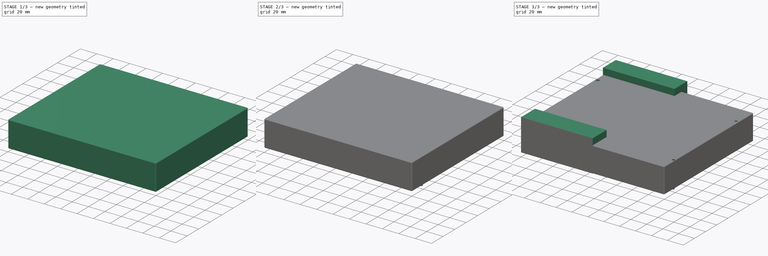
[diagram: build sequence overview — one tinted view per stage of 3, left to right]
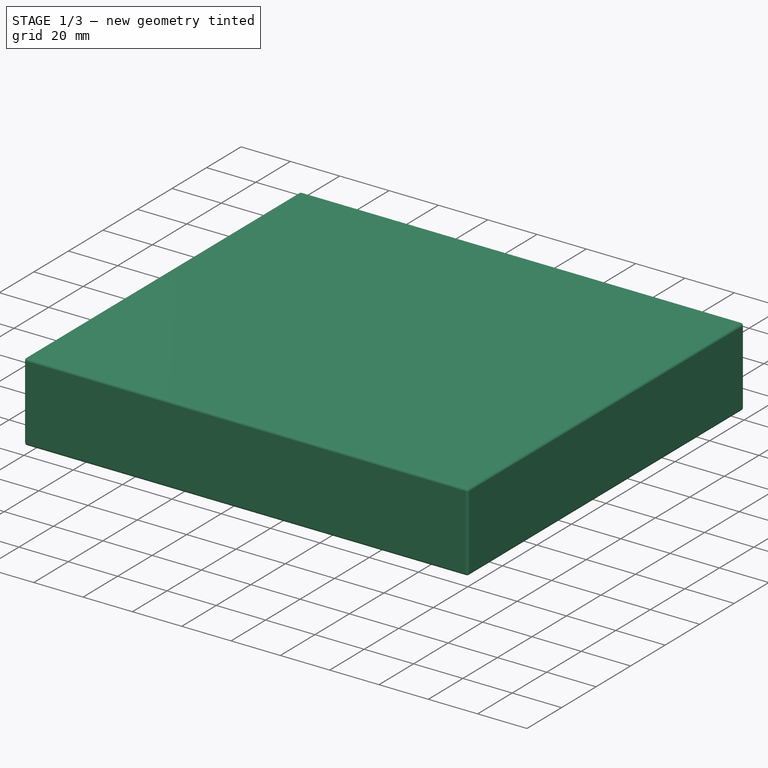
[diagram: stage 1 of 3 — iso view after this stage's code; geometry added in this stage tinted green]
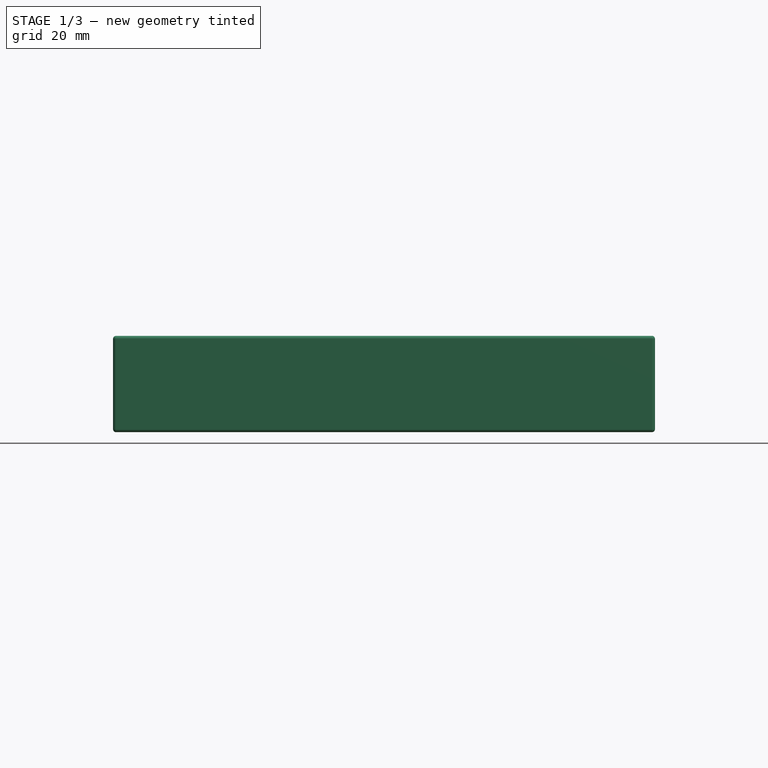
[diagram: stage 1 of 3 — front view after this stage's code; geometry added in this stage tinted green]
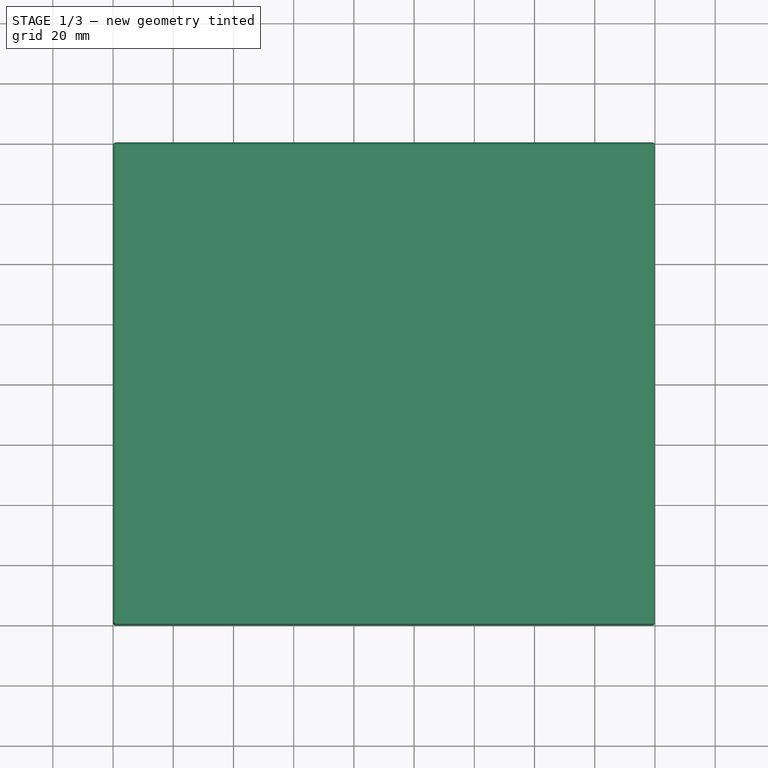
[diagram: stage 1 of 3 — top view after this stage's code; geometry added in this stage tinted green]
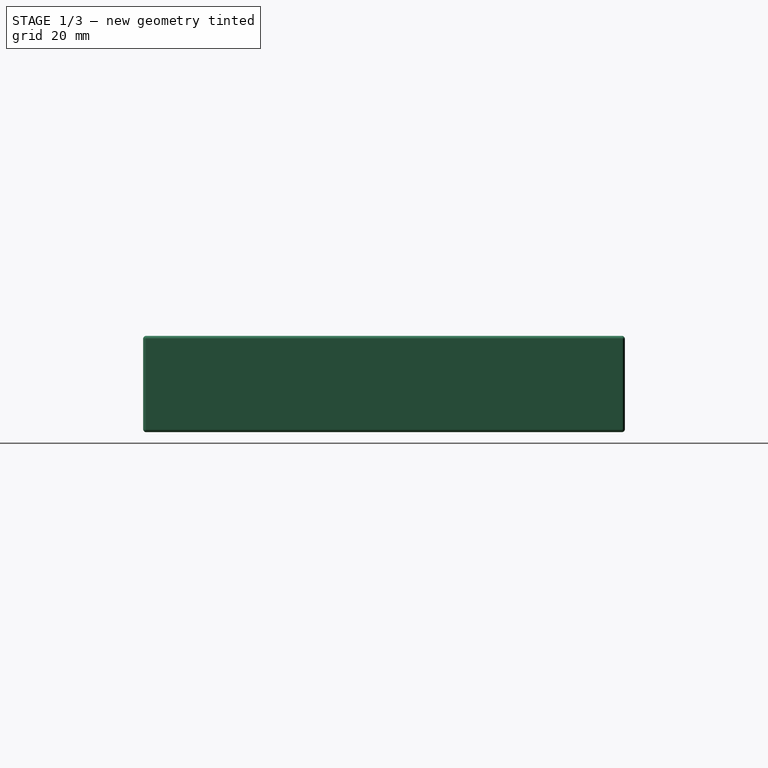
[diagram: stage 1 of 3 — right view after this stage's code; geometry added in this stage tinted green]
FCSTD DOCUMENT  (FreeCAD 1.2R20251230 (Git shallow))
Label: box_electronic_component
License: Creative Commons Attribution 4.0
LicenseURL: https://creativecommons.org/licenses/by/4.0/
objects: Sketcher::SketchObject×6, PartDesign::Pad×4, App::Point×2, PartDesign::Pocket×2, PartDesign::Body×2, PartDesign::Fillet×2
note: 38 computed .brp shape members not serialized (recipe doc carries the construction recipe); baked Part::Feature solids carry a one-line shape summary decoded from their .brp

FEATURE [PartDesign::Body] Body001  label="sign_tree"
  AllowCompound = true
  Group = -> [Sketch002,Pad,Sketch003,Pocket]
  Origin = -> Origin002
  Tip = -> Pocket
FEATURE [PartDesign::Pad] Pad001
  Direction = (0,0,1)
  Length = 30
  Length2 = 10
  Profile = -> Sketch
  ReferenceAxis = -> Sketch [N_Axis]
  Refine = true
  SideType = 0
  Suppressed = false
  Type = 0
  Type2 = 0
FEATURE [Sketcher::SketchObject] Sketch004
  ArcFitTolerance = 1e-06
  AttachmentSupport = -> [Pad001]
  ExternalTypes = [0,0]
  FullyConstrained = false
  MakeInternals = false
  MapMode = 5
  Placement = pos=(0,0,30) rot=(0,0,1;0rad)
  sketch-geometry (4):
    g0: LineSegment StartX=180 StartY=160 StartZ=0 EndX=0 EndY=160 EndZ=0
    g1: LineSegment StartX=0 StartY=160 StartZ=0 EndX=0 EndY=0 EndZ=0
    g2: LineSegment StartX=0 StartY=0 StartZ=0 EndX=180 EndY=0 EndZ=0
    g3: LineSegment StartX=180 StartY=0 StartZ=0 EndX=180 EndY=160 EndZ=0
  constraints (9):
    c: Coincident(g0,g1)
    c: Coincident(g1,g2)
    c: Coincident(g2,g3)
    c: Coincident(g3,g0)
    c: Horizontal(g0)
    c: Horizontal(g2)
    c: Vertical(g1)
    c: Vertical(g3)
    c: Coincident(g1,g-1)
FEATURE [PartDesign::Pad] Pad002
  BaseFeature = -> Pad001
  Direction = (0,0,1)
  Length = 2
  Length2 = 10
  Profile = -> Sketch004
  ReferenceAxis = -> Sketch004 [N_Axis]
  Refine = true
  SideType = 0
  Suppressed = false
  Type = 0
  Type2 = 0
FEATURE [PartDesign::Fillet] Fillet
  Base = -> Pad002 [Face74,Face72,Face76,Face75]
  BaseFeature = -> Pad002
  Radius = 1
  Refine = true
  SupportTransform = false
  Suppressed = false
  UseAllEdges = false
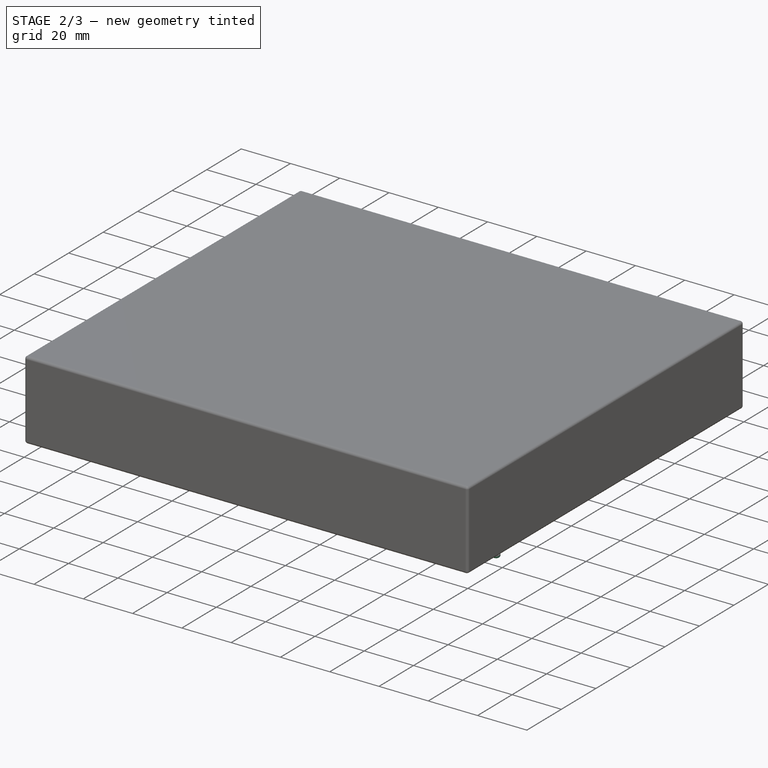
[diagram: stage 2 of 3 — iso view after this stage's code; geometry added in this stage tinted green]
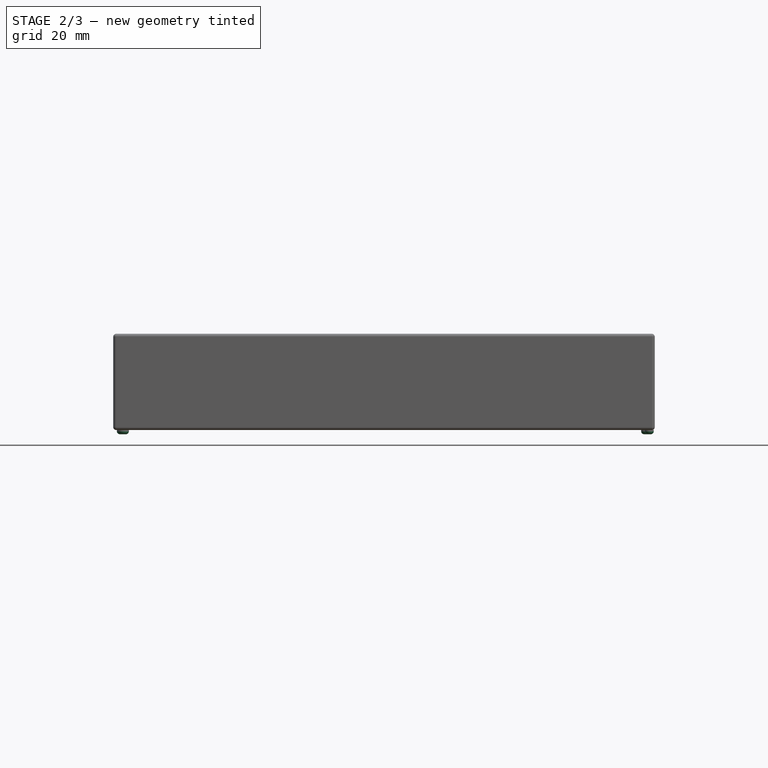
[diagram: stage 2 of 3 — front view after this stage's code; geometry added in this stage tinted green]
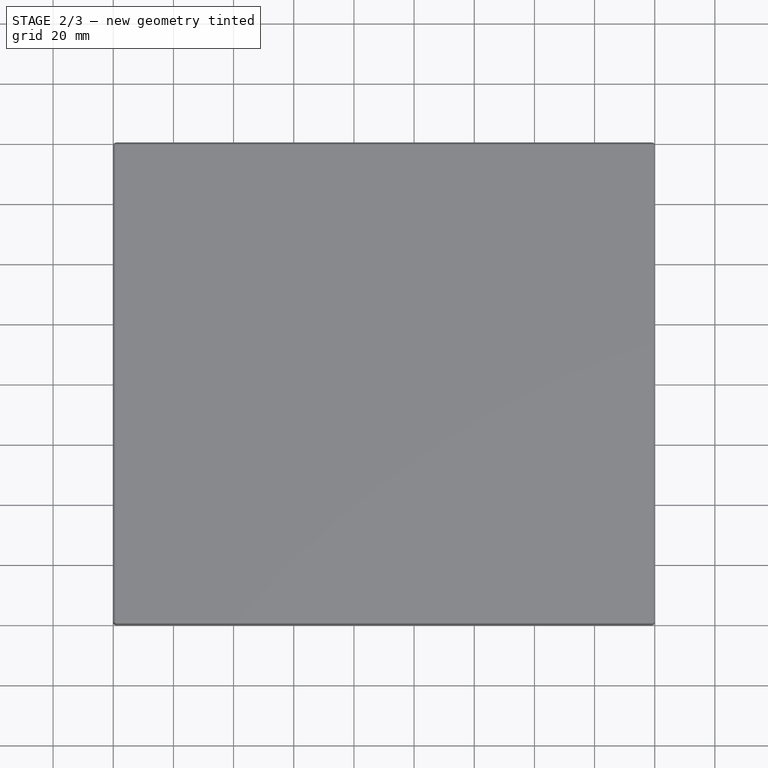
[diagram: stage 2 of 3 — top view after this stage's code; geometry added in this stage tinted green]
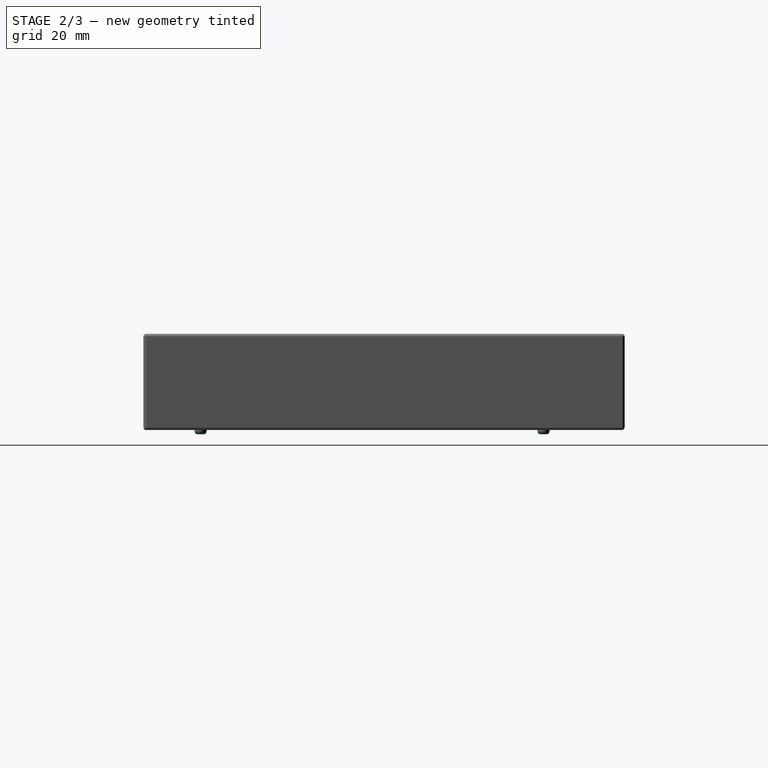
[diagram: stage 2 of 3 — right view after this stage's code; geometry added in this stage tinted green]
FEATURE [Sketcher::SketchObject] Sketch005
  ArcFitTolerance = 1e-06
  AttachmentSupport = -> [Fillet]
  ExternalTypes = [0]
  FullyConstrained = false
  MakeInternals = false
  MapMode = 5
  Placement = pos=(0,0,0) rot=(1,0,0;3.14159rad)
  sketch-geometry (4):
    g0: Circle CenterX=3.19213 CenterY=-19.0205 CenterZ=0 NormalX=0 NormalY=0 NormalZ=1 AngleXU=0 Radius=2
    g1: Circle CenterX=178.165 CenterY=-19.0204 CenterZ=0 NormalX=0 NormalY=0 NormalZ=1 AngleXU=0 Radius=1.5
    g2: Circle CenterX=3.19217 CenterY=-133.021 CenterZ=0 NormalX=0 NormalY=0 NormalZ=1 AngleXU=0 Radius=2
    g3: Circle CenterX=176.965 CenterY=-133.078 CenterZ=0 NormalX=0 NormalY=0 NormalZ=1 AngleXU=0 Radius=1.5
FEATURE [PartDesign::Pad] Pad003
  BaseFeature = -> Fillet
  Direction = (0,0,-1)
  Length = 1.4
  Length2 = 10
  Profile = -> Sketch005
  ReferenceAxis = -> Sketch005 [N_Axis]
  Refine = true
  SideType = 0
  Suppressed = false
  Type = 0
  Type2 = 0
FEATURE [PartDesign::Fillet] Fillet001
  Base = -> Pad003 [Face76,Face72,Edge194,Face84,Face92]
  BaseFeature = -> Pad003
  Radius = 1
  Refine = true
  SupportTransform = false
  Suppressed = false
  UseAllEdges = false
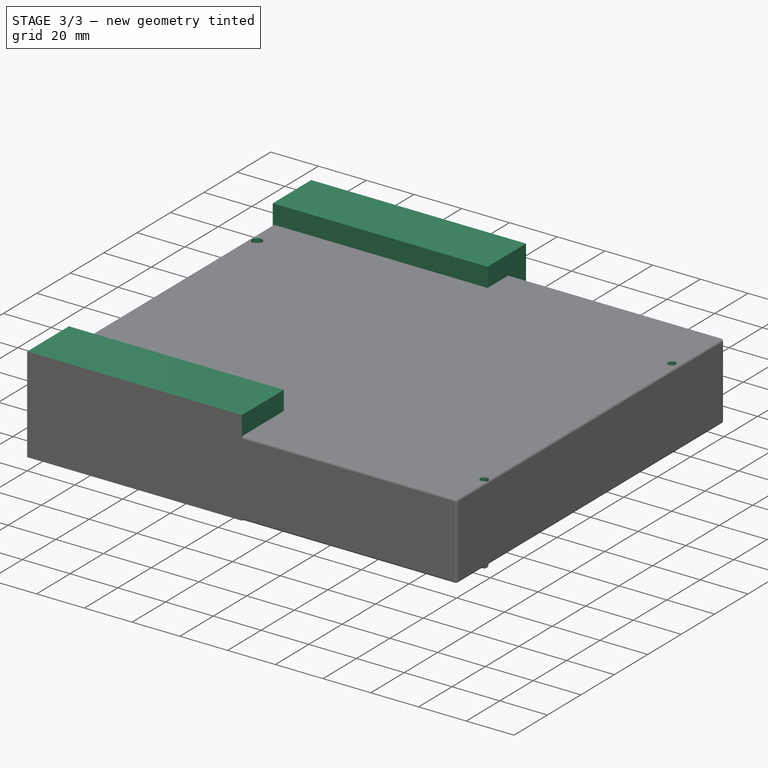
[diagram: stage 3 of 3 — iso view after this stage's code; geometry added in this stage tinted green]
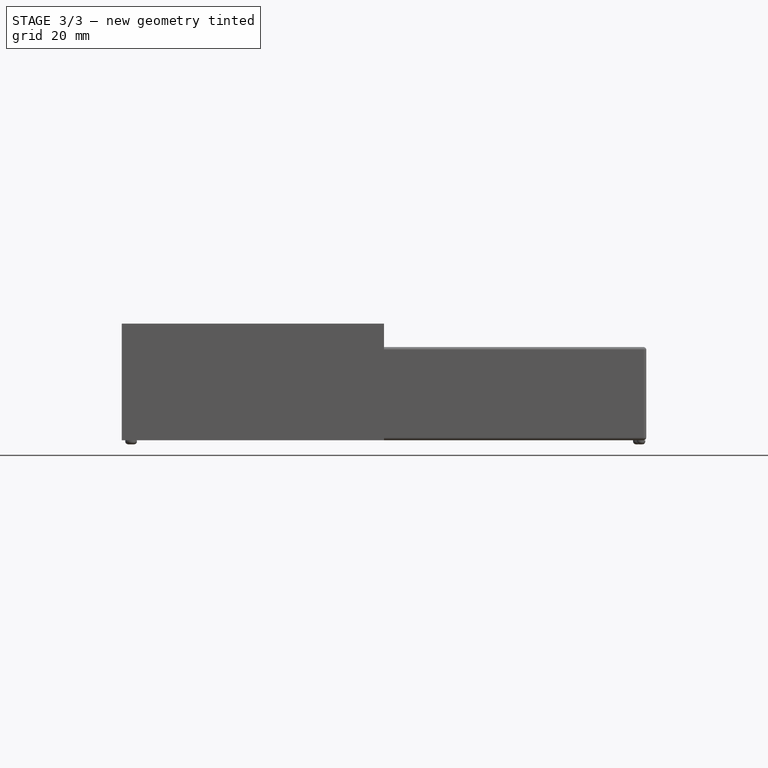
[diagram: stage 3 of 3 — front view after this stage's code; geometry added in this stage tinted green]
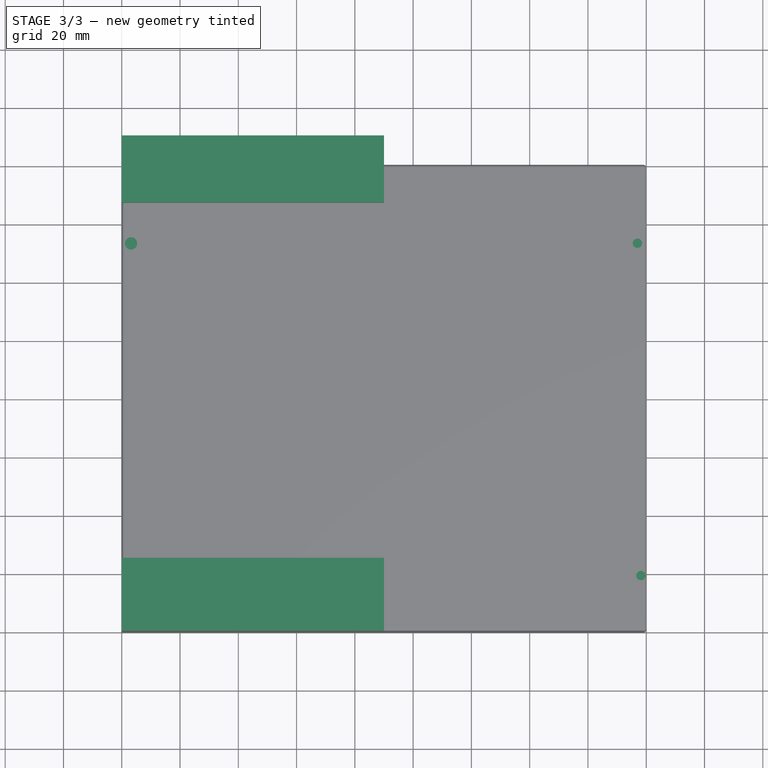
[diagram: stage 3 of 3 — top view after this stage's code; geometry added in this stage tinted green]
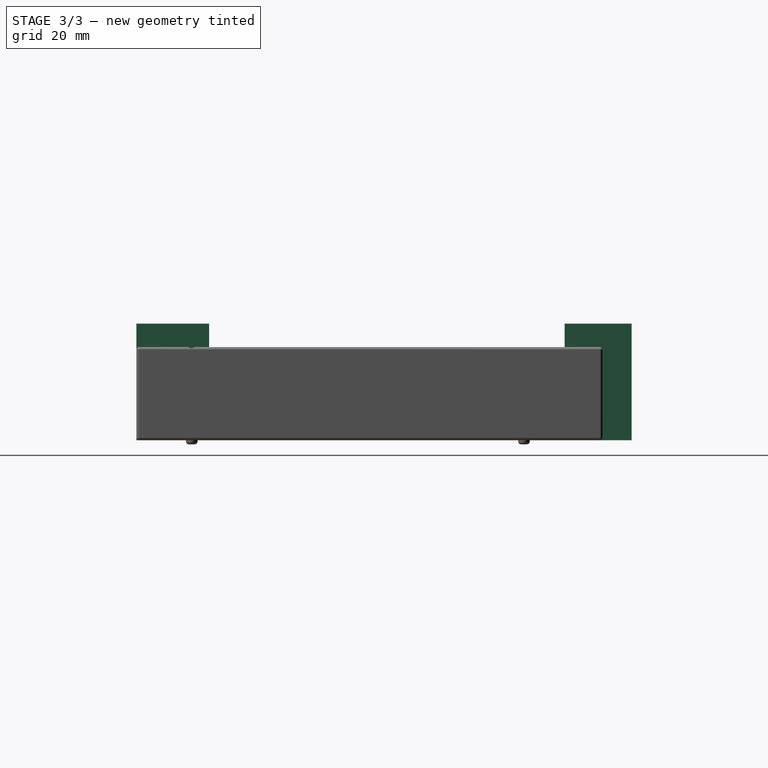
[diagram: stage 3 of 3 — right view after this stage's code; geometry added in this stage tinted green]
FEATURE [App::Point] Origin001  label="原点"
  Role = Origin
FEATURE [Sketcher::SketchObject] Sketch
  ArcFitTolerance = 1e-06
  AttachmentSupport = -> [Origin]
  ExternalTypes = [0]
  FullyConstrained = false
  MakeInternals = false
  MapMode = 5
  sketch-geometry (60):
    g0: LineSegment StartX=0 StartY=0 StartZ=0 EndX=180 EndY=0 EndZ=0
    g1: LineSegment StartX=180 StartY=0 StartZ=0 EndX=180 EndY=160 EndZ=0
    g2: LineSegment StartX=180 StartY=160 StartZ=0 EndX=0 EndY=160 EndZ=0
    g3: LineSegment StartX=0 StartY=160 StartZ=0 EndX=0 EndY=0 EndZ=0
    g4: LineSegment StartX=5.55573 StartY=3.32431 StartZ=0 EndX=89.2393 EndY=3.32431 EndZ=0
    g5: LineSegment StartX=176 StartY=3.28844 StartZ=0 EndX=176 EndY=52.952 EndZ=0
    g6: LineSegment StartX=176 StartY=52.952 StartZ=0 EndX=92.4115 EndY=52.952 EndZ=0
    g7: LineSegment StartX=5.55573 StartY=52.9879 StartZ=0 EndX=5.55573 EndY=3.32431 EndZ=0
    g8: LineSegment StartX=89.2393 StartY=52.9879 StartZ=0 EndX=5.55573 EndY=52.9879 EndZ=0
    g9: LineSegment StartX=89.2393 StartY=52.9879 StartZ=0 EndX=89.2393 EndY=3.32431 EndZ=0
    g10: LineSegment StartX=92.4115 StartY=52.952 StartZ=0 EndX=92.4115 EndY=3.28844 EndZ=0
    g11: LineSegment StartX=92.4115 StartY=3.28844 StartZ=0 EndX=176 EndY=3.28844 EndZ=0
    g12: LineSegment StartX=5.55573 StartY=158 StartZ=0 EndX=5.55573 EndY=135 EndZ=0
    g13: LineSegment StartX=5.55573 StartY=135 StartZ=0 EndX=60.1761 EndY=135 EndZ=0
    g14: LineSegment StartX=60.1761 StartY=135 StartZ=0 EndX=60.1761 EndY=158 EndZ=0
    g15: LineSegment StartX=60.1761 StartY=158 StartZ=0 EndX=5.55573 EndY=158 EndZ=0
    g16: LineSegment StartX=61.5557 StartY=158 StartZ=0 EndX=61.5557 EndY=135 EndZ=0
    g17: LineSegment StartX=61.5557 StartY=135 StartZ=0 EndX=116.176 EndY=135 EndZ=0
    g18: LineSegment StartX=116.176 StartY=135 StartZ=0 EndX=116.176 EndY=158 EndZ=0
    g19: LineSegment StartX=116.176 StartY=158 StartZ=0 EndX=61.5557 EndY=158 EndZ=0
    g20: LineSegment StartX=117.556 StartY=158 StartZ=0 EndX=117.556 EndY=135 EndZ=0
    g21: LineSegment StartX=117.556 StartY=135 StartZ=0 EndX=176 EndY=135 EndZ=0
    g22: LineSegment StartX=176 StartY=135 StartZ=0 EndX=176 EndY=158 EndZ=0
    g23: LineSegment StartX=176 StartY=158 StartZ=0 EndX=117.556 EndY=158 EndZ=0
    g24: LineSegment StartX=5.55573 StartY=132 StartZ=0 EndX=5.55573 EndY=109 EndZ=0
    g25: LineSegment StartX=5.55573 StartY=109 StartZ=0 EndX=60.1761 EndY=109 EndZ=0
    g26: LineSegment StartX=60.1761 StartY=109 StartZ=0 EndX=60.1761 EndY=132 EndZ=0
    g27: LineSegment StartX=60.1761 StartY=132 StartZ=0 EndX=5.55573 EndY=132 EndZ=0
    g28: LineSegment StartX=61.5557 StartY=132 StartZ=0 EndX=61.5557 EndY=109 EndZ=0
    g29: LineSegment StartX=61.5557 StartY=109 StartZ=0 EndX=116.176 EndY=109 EndZ=0
    g30: LineSegment StartX=116.176 StartY=109 StartZ=0 EndX=116.176 EndY=132 EndZ=0
    g31: LineSegment StartX=116.176 StartY=132 StartZ=0 EndX=61.5557 EndY=132 EndZ=0
    g32: LineSegment StartX=117.556 StartY=132 StartZ=0 EndX=117.556 EndY=109 EndZ=0
    g33: LineSegment StartX=117.556 StartY=109 StartZ=0 EndX=176 EndY=109 EndZ=0
    g34: LineSegment StartX=176 StartY=109 StartZ=0 EndX=176 EndY=132 EndZ=0
    g35: LineSegment StartX=176 StartY=132 StartZ=0 EndX=117.556 EndY=132 EndZ=0
    g36: LineSegment StartX=5.55573 StartY=106 StartZ=0 EndX=5.55573 EndY=83 EndZ=0
    g37: LineSegment StartX=5.55573 StartY=83 StartZ=0 EndX=60.1761 EndY=83 EndZ=0
    g38: LineSegment StartX=60.1761 StartY=83 StartZ=0 EndX=60.1761 EndY=106 EndZ=0
    g39: LineSegment StartX=60.1761 StartY=106 StartZ=0 EndX=5.55573 EndY=106 EndZ=0
    g40: LineSegment StartX=61.5557 StartY=106 StartZ=0 EndX=61.5557 EndY=83 EndZ=0
    g41: LineSegment StartX=61.5557 StartY=83 StartZ=0 EndX=116.176 EndY=83 EndZ=0
    g42: LineSegment StartX=116.176 StartY=83 StartZ=0 EndX=116.176 EndY=106 EndZ=0
    g43: LineSegment StartX=116.176 StartY=106 StartZ=0 EndX=61.5557 EndY=106 EndZ=0
    g44: LineSegment StartX=117.556 StartY=106 StartZ=0 EndX=117.556 EndY=83 EndZ=0
    g45: LineSegment StartX=117.556 StartY=83 StartZ=0 EndX=176 EndY=83 EndZ=0
    g46: LineSegment StartX=176 StartY=83 StartZ=0 EndX=176 EndY=106 EndZ=0
    g47: LineSegment StartX=176 StartY=106 StartZ=0 EndX=117.556 EndY=106 EndZ=0
    g48: LineSegment StartX=5.55573 StartY=80 StartZ=0 EndX=5.55573 EndY=57 EndZ=0
    g49: LineSegment StartX=5.55573 StartY=57 StartZ=0 EndX=60.1761 EndY=57 EndZ=0
    g50: LineSegment StartX=60.1761 StartY=57 StartZ=0 EndX=60.1761 EndY=80 EndZ=0
    g51: LineSegment StartX=60.1761 StartY=80 StartZ=0 EndX=5.55573 EndY=80 EndZ=0
    g52: LineSegment StartX=61.5557 StartY=80 StartZ=0 EndX=61.5557 EndY=57 EndZ=0
    g53: LineSegment StartX=61.5557 StartY=57 StartZ=0 EndX=116.176 EndY=57 EndZ=0
    g54: LineSegment StartX=116.176 StartY=57 StartZ=0 EndX=116.176 EndY=80 EndZ=0
    g55: LineSegment StartX=116.176 StartY=80 StartZ=0 EndX=61.5557 EndY=80 EndZ=0
    g56: LineSegment StartX=117.556 StartY=80 StartZ=0 EndX=117.556 EndY=57 EndZ=0
    g57: LineSegment StartX=117.556 StartY=57 StartZ=0 EndX=176 EndY=57 EndZ=0
    g58: LineSegment StartX=176 StartY=57 StartZ=0 EndX=176 EndY=80 EndZ=0
    g59: LineSegment StartX=176 StartY=80 StartZ=0 EndX=117.556 EndY=80 EndZ=0
  constraints (122):
    c: Coincident(g0,g1)
    c: Coincident(g1,g2)
    c: Coincident(g2,g3)
    c: Coincident(g3,g0)
    c: Horizontal(g0)
    c: Horizontal(g2)
    c: Vertical(g1)
    c: Vertical(g3)
    c: Coincident(g0,g-1)
    c: Coincident(g5,g6)
    c: Coincident(g8,g7)
    c: Coincident(g7,g4)
    c: Vertical(g5)
    c: Vertical(g7)
    c: Horizontal(g8)
    c: Horizontal(g4)
    c: Horizontal(g6)
    c: Coincident(g9,g8)
    c: Coincident(g9,g4)
    c: Vertical(g9)
    c: Coincident(g10,g6)
    c: Coincident(g11,g10)
    c: Coincident(g11,g5)
    c: Horizontal(g11)
    c: Coincident(g12,g13)
    c: Coincident(g13,g14)
    c: Coincident(g14,g15)
    c: Coincident(g15,g12)
    c: Vertical(g12)
    c: Vertical(g14)
    c: Horizontal(g13)
    c: Horizontal(g15)
    c: DistanceY(g1,g1) = 160
    c: Coincident(g16,g17)
    c: Coincident(g20,g21)
    c: Coincident(g17,g18)
    c: Coincident(g21,g22)
    c: Coincident(g18,g19)
    c: Coincident(g22,g23)
    c: Coincident(g19,g16)
    c: Coincident(g23,g20)
    c: Vertical(g16)
    c: Vertical(g20)
    c: Vertical(g18)
    c: Vertical(g22)
    c: Horizontal(g17)
    c: Horizontal(g21)
    c: Horizontal(g19)
    c: Horizontal(g23)
    c: Distance(g1,g5) = 4
    c: Coincident(g24,g25)
    c: Coincident(g36,g37)
    c: Coincident(g48,g49)
    c: Coincident(g25,g26)
    c: Coincident(g37,g38)
    c: Coincident(g49,g50)
    c: Coincident(g26,g27)
    c: Coincident(g38,g39)
    c: Coincident(g50,g51)
    c: Coincident(g27,g24)
    c: Coincident(g39,g36)
    c: Coincident(g51,g48)
    c: Vertical(g24)
    c: Vertical(g36)
    c: Vertical(g48)
    c: Vertical(g26)
    c: Vertical(g38)
    c: Vertical(g50)
    c: Horizontal(g25)
    c: Horizontal(g37)
    c: Horizontal(g49)
    c: Horizontal(g27)
    c: Horizontal(g39)
    c: Horizontal(g51)
    c: Coincident(g28,g29)
    c: Coincident(g40,g41)
    c: Coincident(g52,g53)
    c: Coincident(g32,g33)
    c: Coincident(g44,g45)
    c: Coincident(g56,g57)
    c: Coincident(g29,g30)
    c: Coincident(g41,g42)
    c: Coincident(g53,g54)
    c: Coincident(g33,g34)
    c: Coincident(g45,g46)
    c: Coincident(g57,g58)
    c: Coincident(g30,g31)
    c: Coincident(g42,g43)
    c: Coincident(g54,g55)
    c: Coincident(g34,g35)
    c: Coincident(g46,g47)
    c: Coincident(g58,g59)
    c: Coincident(g31,g28)
    c: Coincident(g43,g40)
    c: Coincident(g55,g52)
    c: Coincident(g35,g32)
    c: Coincident(g47,g44)
    c: Coincident(g59,g56)
    c: Vertical(g28)
    c: Vertical(g40)
    c: Vertical(g52)
    c: Vertical(g32)
    c: Vertical(g44)
    c: Vertical(g56)
    c: Vertical(g30)
    c: Vertical(g42)
    c: Vertical(g54)
    c: Vertical(g34)
    c: Vertical(g46)
    c: Vertical(g58)
    c: Horizontal(g29)
    c: Horizontal(g41)
    c: Horizontal(g53)
    c: Horizontal(g33)
    c: Horizontal(g45)
    c: Horizontal(g57)
    c: Horizontal(g31)
    c: Horizontal(g43)
    c: Horizontal(g55)
    c: Horizontal(g35)
    c: Horizontal(g47)
    c: Horizontal(g59)
FEATURE [App::Point] Origin003  label="原点002"
  Role = Origin
FEATURE [Sketcher::SketchObject] Sketch002
  ArcFitTolerance = 1e-06
  AttachmentSupport = -> [Origin002]
  ExternalTypes = [0]
  FullyConstrained = true
  MakeInternals = false
  MapMode = 5
  sketch-geometry (4):
    g0: LineSegment StartX=0 StartY=0 StartZ=0 EndX=90 EndY=0 EndZ=0
    g1: LineSegment StartX=90 StartY=0 StartZ=0 EndX=90 EndY=170 EndZ=0
    g2: LineSegment StartX=90 StartY=170 StartZ=0 EndX=0 EndY=170 EndZ=0
    g3: LineSegment StartX=0 StartY=170 StartZ=0 EndX=0 EndY=0 EndZ=0
  constraints (11):
    c: Coincident(g0,g1)
    c: Coincident(g1,g2)
    c: Coincident(g2,g3)
    c: Coincident(g3,g0)
    c: Horizontal(g0)
    c: Horizontal(g2)
    c: Vertical(g1)
    c: Vertical(g3)
    c: Coincident(g0,g-1)
    c: DistanceY(g1,g1) = 170
    c: DistanceX(g2,g2) = 90
FEATURE [PartDesign::Pad] Pad
  Direction = (0,0,1)
  Length = 40
  Length2 = 10
  Profile = -> Sketch002
  ReferenceAxis = -> Sketch002 [N_Axis]
  Refine = true
  SideType = 0
  Suppressed = false
  Type = 0
  Type2 = 0
FEATURE [Sketcher::SketchObject] Sketch003
  ArcFitTolerance = 1e-06
  AttachmentSupport = -> [Pad]
  ExternalTypes = [0]
  FullyConstrained = true
  MakeInternals = false
  MapMode = 5
  Placement = pos=(0,0,40) rot=(0,0,1;0rad)
  sketch-geometry (4):
    g0: LineSegment StartX=0 StartY=25 StartZ=0 EndX=90 EndY=25 EndZ=0
    g1: LineSegment StartX=90 StartY=25 StartZ=0 EndX=90 EndY=147 EndZ=0
    g2: LineSegment StartX=90 StartY=147 StartZ=0 EndX=0 EndY=147 EndZ=0
    g3: LineSegment StartX=0 StartY=147 StartZ=0 EndX=0 EndY=25 EndZ=0
  constraints (12):
    c: Coincident(g0,g1)
    c: Coincident(g1,g2)
    c: Coincident(g2,g3)
    c: Coincident(g3,g0)
    c: Horizontal(g0)
    c: Horizontal(g2)
    c: Vertical(g1)
    c: Vertical(g3)
    c: PointOnObject(g0,g-2)
    c: DistanceY(g3,g3) = 122
    c: DistanceX(g0,g0) = 90
    c: Distance(g-1,g0) = 25
FEATURE [PartDesign::Pocket] Pocket
  BaseFeature = -> Pad
  Direction = (0,0,-1)
  Length = 20
  Length2 = 5
  Profile = -> Sketch003
  ReferenceAxis = -> Sketch003 [N_Axis]
  Refine = true
  SideType = 0
  Suppressed = false
  Type = 0
  Type2 = 0
FEATURE [Sketcher::SketchObject] Sketch006
  ArcFitTolerance = 1e-06
  AttachmentSupport = -> [Fillet001]
  ExternalTypes = [0,0,0,0]
  FullyConstrained = false
  MakeInternals = false
  MapMode = 5
  Placement = pos=(0,0,32) rot=(0,0,1;0rad)
  sketch-geometry (4):
    g0: Circle CenterX=3.19217 CenterY=133.021 CenterZ=0 NormalX=0 NormalY=0 NormalZ=1 AngleXU=0 Radius=2.1
    g1: Circle CenterX=3.19213 CenterY=19.0205 CenterZ=0 NormalX=0 NormalY=0 NormalZ=1 AngleXU=0 Radius=2.1
    g2: Circle CenterX=178.165 CenterY=19.0204 CenterZ=0 NormalX=0 NormalY=0 NormalZ=1 AngleXU=0 Radius=1.6
    g3: Circle CenterX=176.965 CenterY=133.078 CenterZ=0 NormalX=0 NormalY=0 NormalZ=1 AngleXU=0 Radius=1.6
  constraints (4):
    c: Diameter(g0) = 4.2
    c: Diameter(g1) = 4.2
    c: Diameter(g2) = 3.2
    c: Diameter(g3) = 3.2
FEATURE [PartDesign::Pocket] Pocket001
  BaseFeature = -> Fillet001
  Direction = (0,0,-1)
  Length = 1.6
  Length2 = 5
  Profile = -> Sketch006
  ReferenceAxis = -> Sketch006 [N_Axis]
  Refine = true
  SideType = 0
  Suppressed = false
  Type = 0
  Type2 = 0
FEATURE [PartDesign::Body] Body
  AllowCompound = true
  Group = -> [Sketch,Pad001,Sketch004,Pad002,Fillet,Sketch005,Pad003,Fillet001,Sketch006,Pocket001]
  Origin = -> Origin
  Tip = -> Pocket001
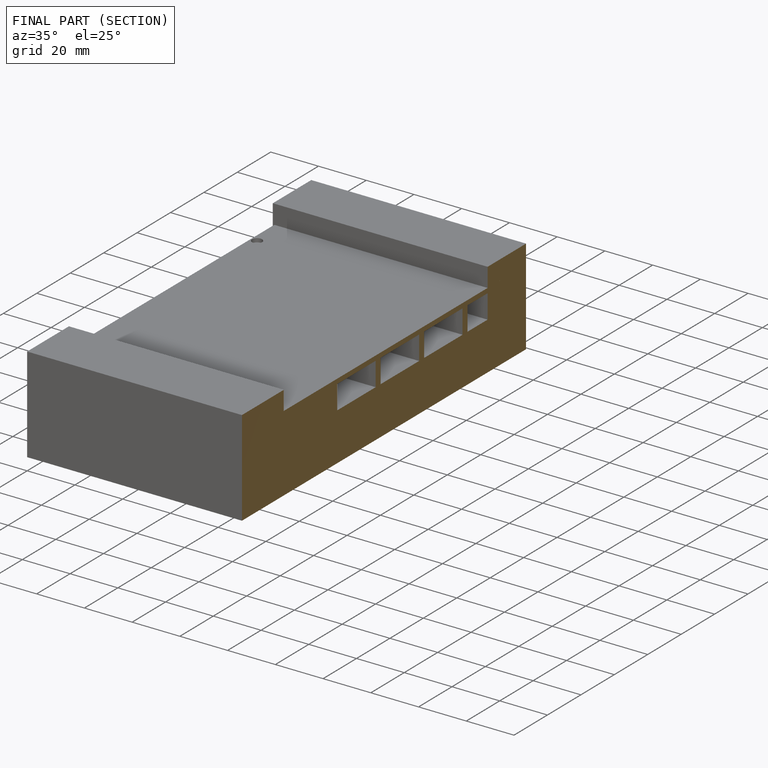
[diagram: finished part — half-section view (interior)]
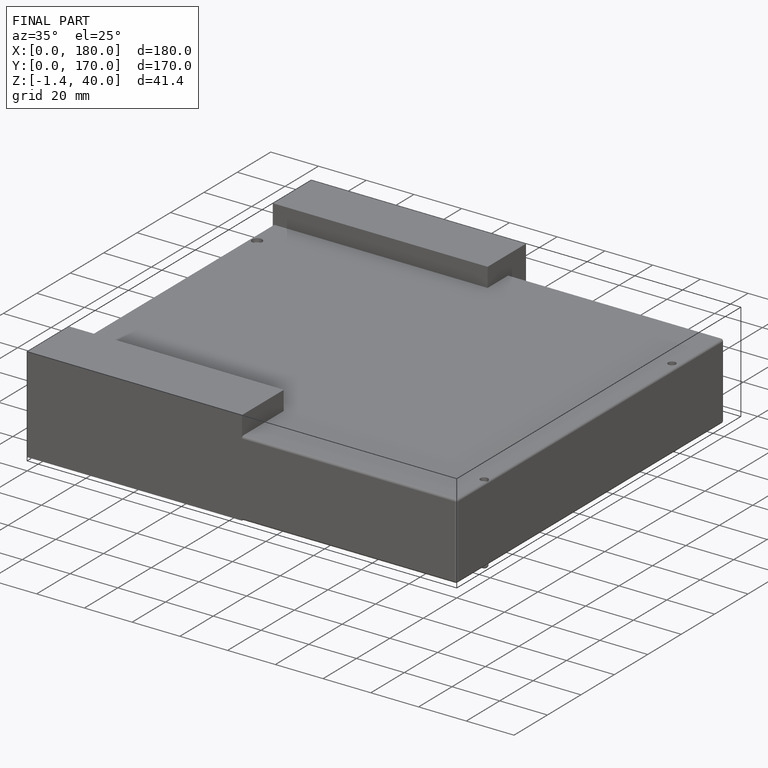
[diagram: finished part — iso view with bounding-box wireframe]
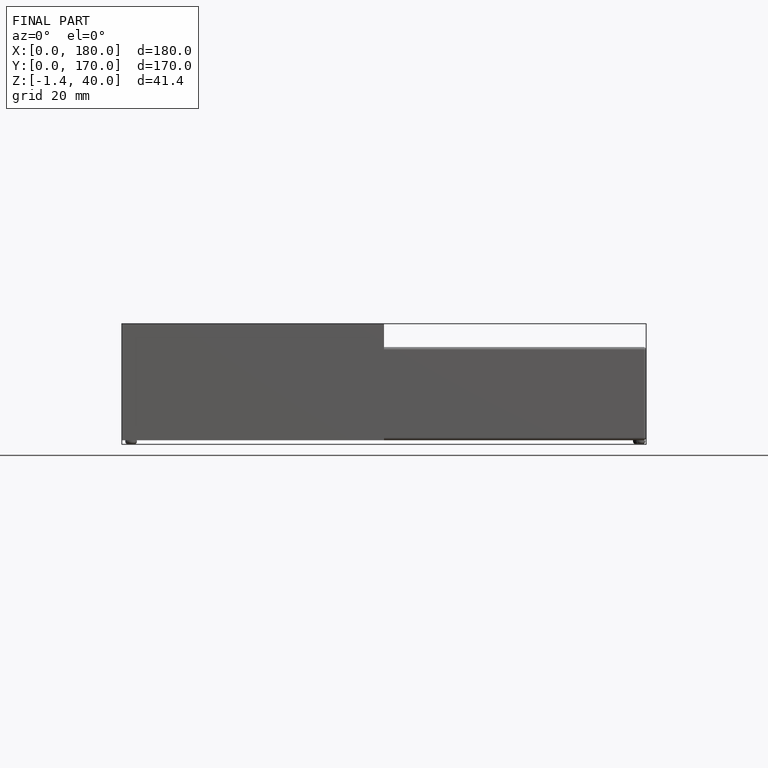
[diagram: finished part — front view with bounding-box wireframe]
